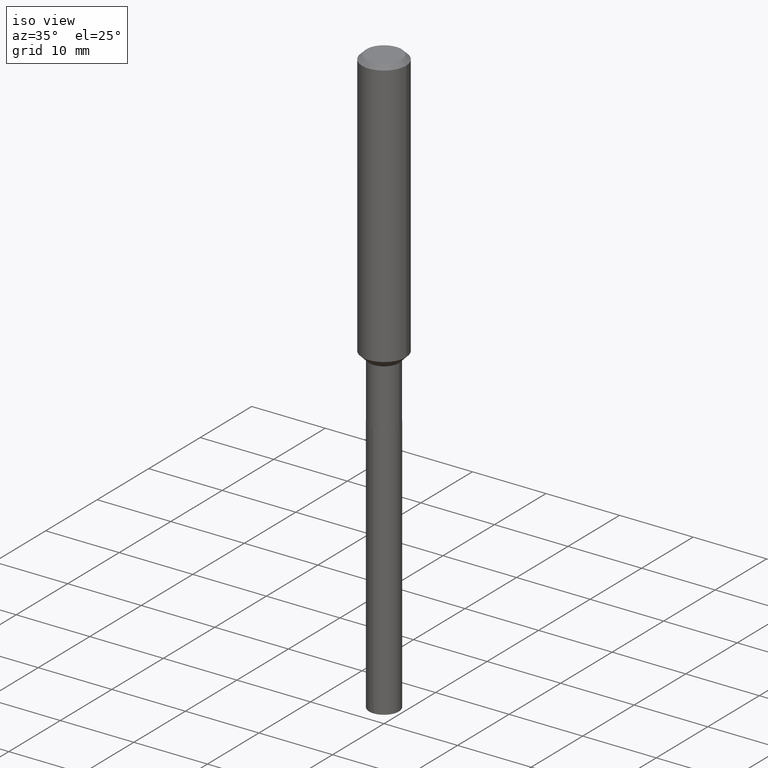
[diagram: clean part render]
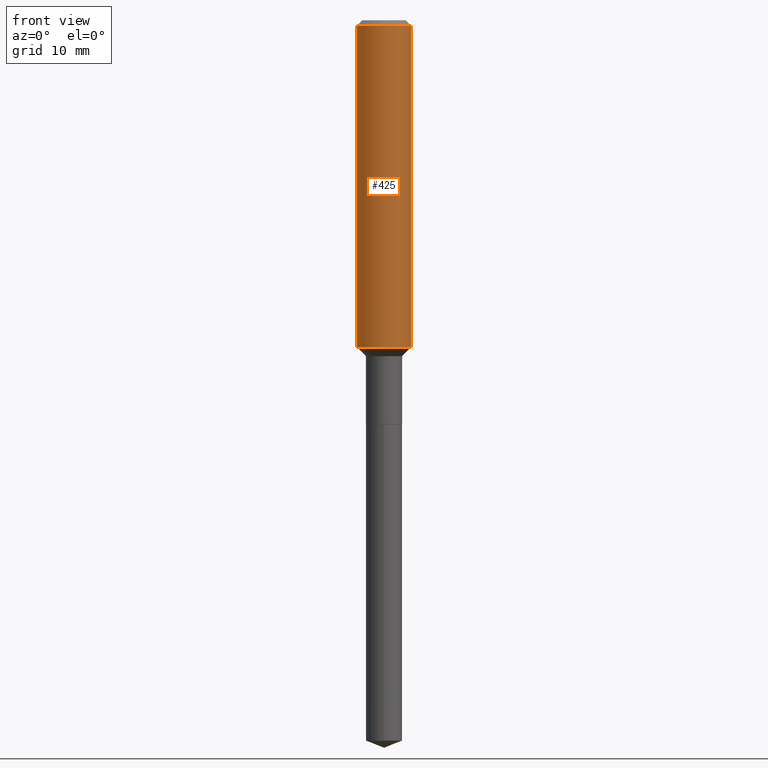
[diagram: tour spotlight — one face highlighted and labeled with its STEP entity id]
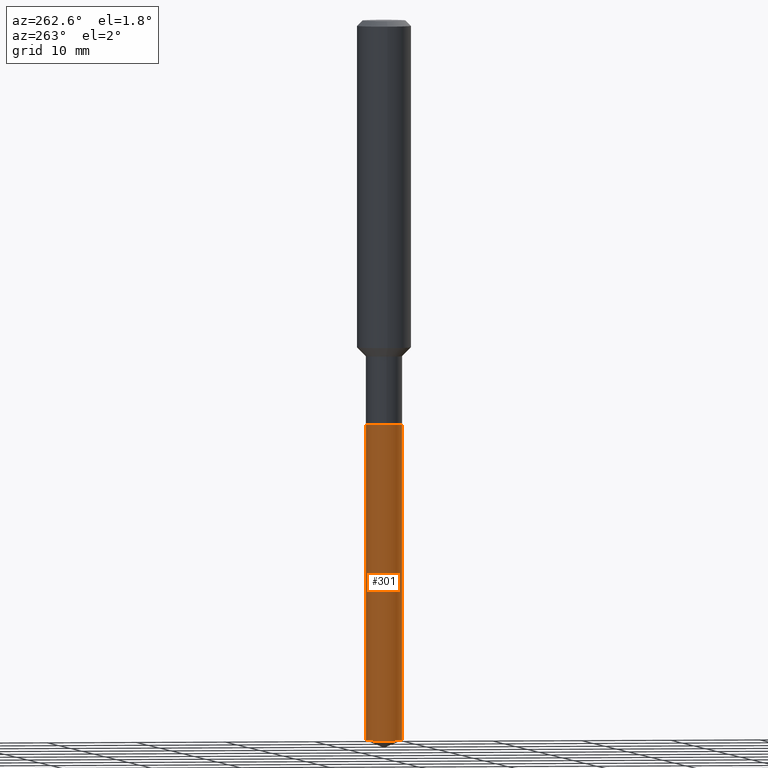
[diagram: tour spotlight — one face highlighted and labeled with its STEP entity id]
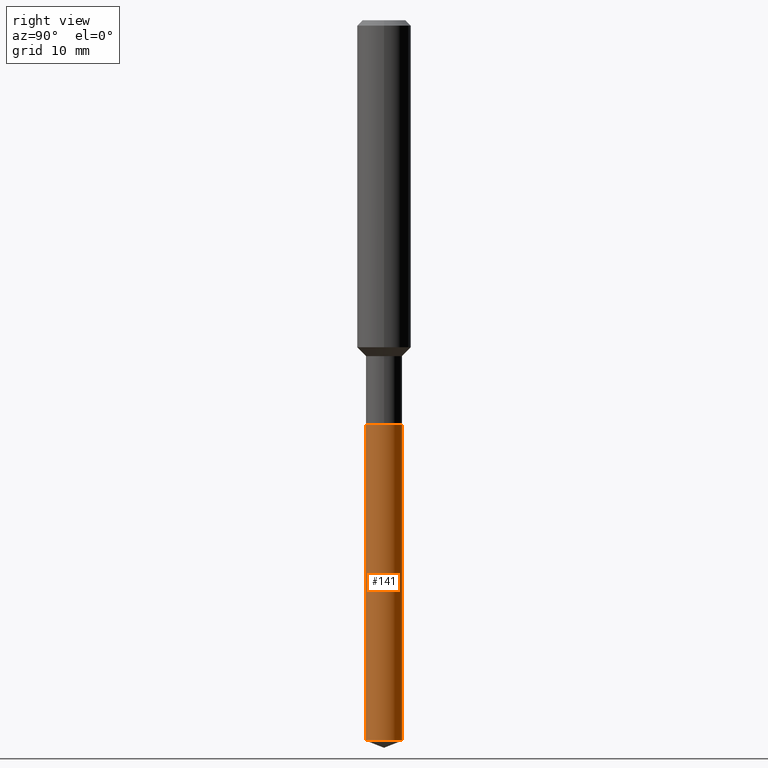
[diagram: tour spotlight — one face highlighted and labeled with its STEP entity id]
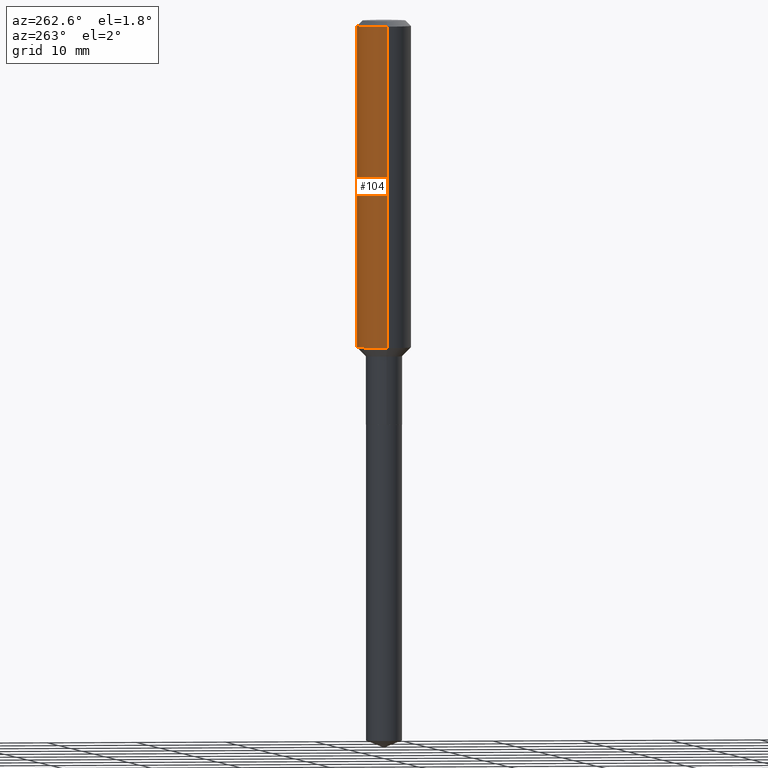
[diagram: tour spotlight — one face highlighted and labeled with its STEP entity id]
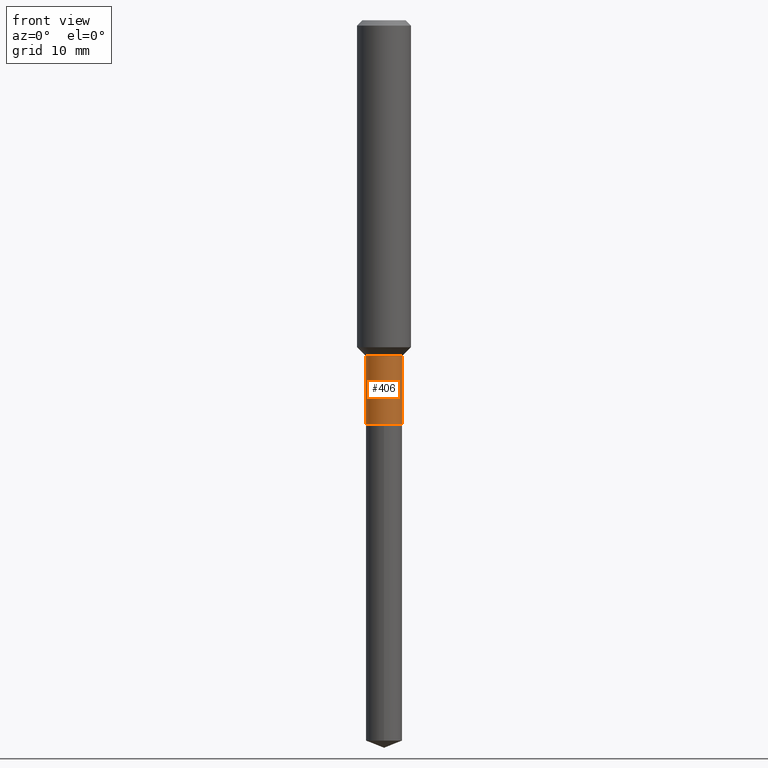
[diagram: tour spotlight — one face highlighted and labeled with its STEP entity id]
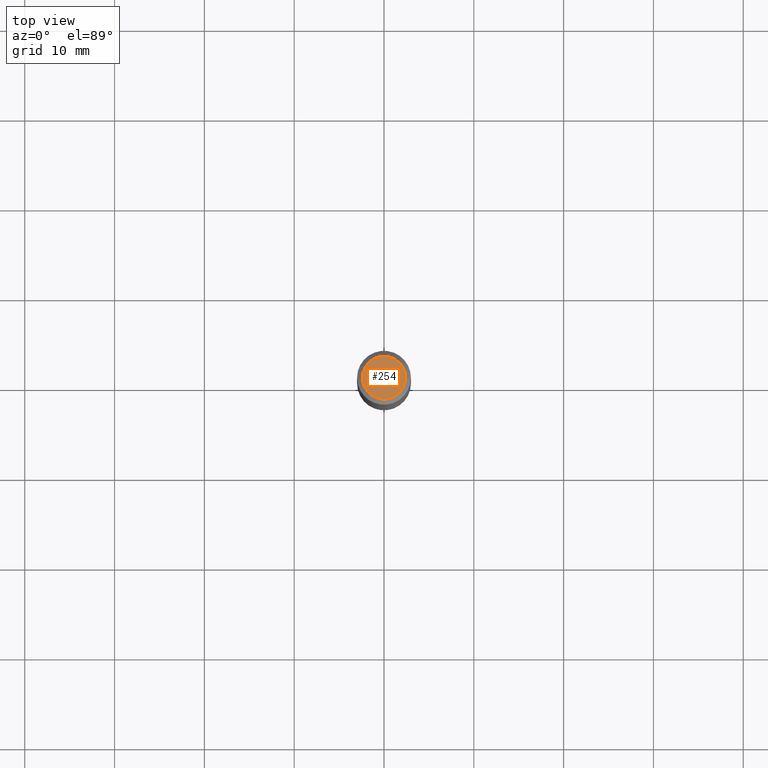
[diagram: tour spotlight — one face highlighted and labeled with its STEP entity id]
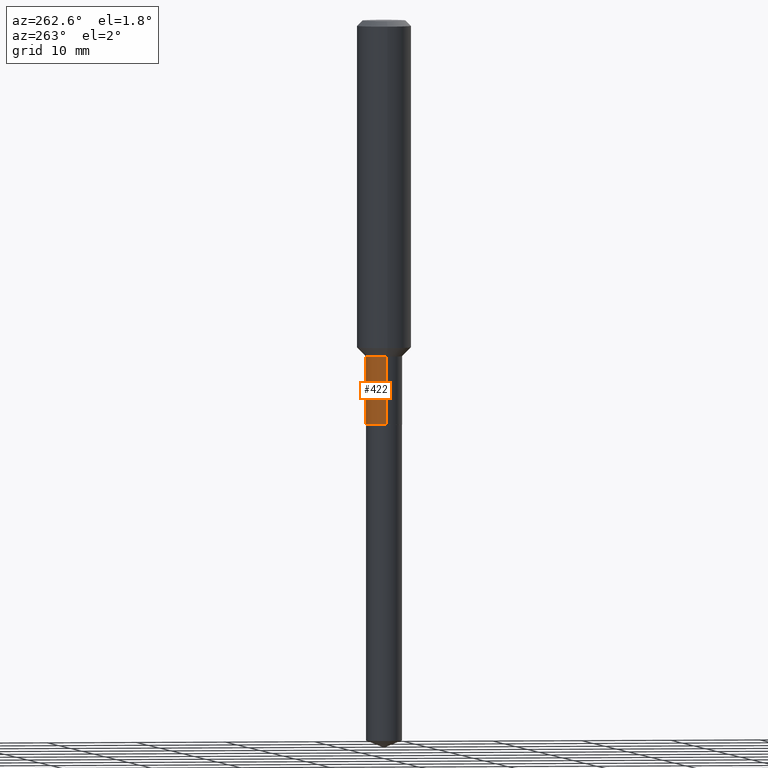
[diagram: tour spotlight — one face highlighted and labeled with its STEP entity id]
A machine part: a face-by-face anatomy tour. The part has 17 B-rep faces; the first image is the clean iso view, then the 7 largest visible faces are spotlighted one at a time (largest first), each with its STEP entity span.

Face 1 — front view, entity #425. In plain terms, the highlighted cylindrical surface (edge-blend (fillet) strip) has radius 2.9997 mm, axis along (-0, 0, 1).
Definition (entity closure, byte-faithful):
#8 = ORIENTED_EDGE ( 'NONE', *, *, #238, .F. ) ;
#27 = DIRECTION ( 'NONE',  ( -2.445468806185136597E-29, 3.491481338843145583E-15, 1.000000000000000000 ) ) ;
#28 = DIRECTION ( 'NONE',  ( -2.445468806185136877E-29, 3.491481338843145188E-15, 1.000000000000000000 ) ) ;
#29 = AXIS2_PLACEMENT_3D ( 'NONE', #194, #345, #156 ) ;
#30 = LINE ( 'NONE', #186, #168 ) ;
#39 = FACE_OUTER_BOUND ( 'NONE', #344, .T. ) ;
#66 = CIRCLE ( 'NONE', #29, 0.1181000000000001632 ) ;
#70 = CARTESIAN_POINT ( 'NONE',  ( 0.1181000000000000799, -8.246878922347486570E-16, 5.758764772215004644E-30 ) ) ;
#72 = CARTESIAN_POINT ( 'NONE',  ( 5.776197320209328408E-31, -8.246878922347560526E-17, -0.02362000000000014435 ) ) ;
#79 = CARTESIAN_POINT ( 'NONE',  ( 0.000000000000000000, 0.000000000000000000, 0.000000000000000000 ) ) ;
#80 = DIRECTION ( 'NONE',  ( 1.000000000000000000, -6.982962677686266711E-15, 0.000000000000000000 ) ) ;
#114 = EDGE_CURVE ( 'NONE', #119, #150, #30, .T. ) ;
#119 = VERTEX_POINT ( 'NONE', #244 ) ;
#150 = VERTEX_POINT ( 'NONE', #436 ) ;
#154 = ORIENTED_EDGE ( 'NONE', *, *, #234, .T. ) ;
#156 = DIRECTION ( 'NONE',  ( 1.000000000000000000, -6.982962677686270655E-15, 0.000000000000000000 ) ) ;
#157 = CARTESIAN_POINT ( 'NONE',  ( 0.1180999999999999966, -9.071566814582237199E-16, -0.02362000000000014435 ) ) ;
#158 = ORIENTED_EDGE ( 'NONE', *, *, #456, .T. ) ;
#166 = CYLINDRICAL_SURFACE ( 'NONE', #423, 0.1181000000000000799 ) ;
#168 = VECTOR ( 'NONE', #474, 39.37007874015748143 ) ;
#186 = CARTESIAN_POINT ( 'NONE',  ( -0.1181000000000000799, 8.391509709326788873E-16, -5.809262341591047988E-30 ) ) ;
#187 = VERTEX_POINT ( 'NONE', #157 ) ;
#194 = CARTESIAN_POINT ( 'NONE',  ( 3.505824080547012473E-29, -5.005387647365534614E-15, -1.433600000000000207 ) ) ;
#221 = ORIENTED_EDGE ( 'NONE', *, *, #114, .F. ) ;
#234 = EDGE_CURVE ( 'NONE', #310, #187, #368, .T. ) ;
#238 = EDGE_CURVE ( 'NONE', #150, #187, #443, .T. ) ;
#244 = CARTESIAN_POINT ( 'NONE',  ( -0.1181000000000001632, -4.166236676432854051E-15, -1.433600000000000207 ) ) ;
#310 = VERTEX_POINT ( 'NONE', #461 ) ;
#342 = DIRECTION ( 'NONE',  ( 1.000000000000000000, -6.982962677686266711E-15, 4.876176775795936353E-29 ) ) ;
#344 = EDGE_LOOP ( 'NONE', ( #221, #158, #154, #8 ) ) ;
#345 = DIRECTION ( 'NONE',  ( -2.445468806185136597E-29, 3.491481338843145583E-15, 1.000000000000000000 ) ) ;
#365 = VECTOR ( 'NONE', #28, 39.37007874015748143 ) ;
#368 = LINE ( 'NONE', #70, #365 ) ;
#369 = AXIS2_PLACEMENT_3D ( 'NONE', #72, #27, #80 ) ;
#423 = AXIS2_PLACEMENT_3D ( 'NONE', #79, #469, #342 ) ;
#425 = ADVANCED_FACE ( 'NONE', ( #39 ), #166, .T. ) ;
#436 = CARTESIAN_POINT ( 'NONE',  ( -0.1180999999999999966, -1.704777247361825655E-15, -0.02362000000000014435 ) ) ;
#443 = CIRCLE ( 'NONE', #369, 0.1180999999999999966 ) ;
#456 = EDGE_CURVE ( 'NONE', #119, #310, #66, .T. ) ;
#461 = CARTESIAN_POINT ( 'NONE',  ( 0.1181000000000001632, -5.830075539600283666E-15, -1.433600000000000207 ) ) ;
#469 = DIRECTION ( 'NONE',  ( -2.445468806185136597E-29, 3.491481338843145583E-15, 1.000000000000000000 ) ) ;
#474 = DIRECTION ( 'NONE',  ( -2.445468806185136877E-29, 3.491481338843145188E-15, 1.000000000000000000 ) ) ;

Face 2 — auxiliary view, entity #301. In plain terms, the highlighted cylindrical surface (edge-blend (fillet) strip) has radius 2.0193 mm, axis along (-0, 0, 1).
Definition (entity closure, byte-faithful):
#3 = VERTEX_POINT ( 'NONE', #438 ) ;
#4 = DIRECTION ( 'NONE',  ( -6.982962677686265922E-15, -1.000000000000000000, 3.436286784483350005E-15 ) ) ;
#12 = DIRECTION ( 'NONE',  ( -2.445298499858016910E-29, 3.491725227196815227E-15, 1.000000000000000000 ) ) ;
#25 = VECTOR ( 'NONE', #284, 39.37007874015748143 ) ;
#44 = ORIENTED_EDGE ( 'NONE', *, *, #405, .T. ) ;
#48 = CARTESIAN_POINT ( 'NONE',  ( -5.551455328760147649E-16, -0.07950000000000617684, -1.771700000000000053 ) ) ;
#73 = ORIENTED_EDGE ( 'NONE', *, *, #370, .F. ) ;
#85 = CARTESIAN_POINT ( 'NONE',  ( 5.648814749293228466E-16, 0.07949999999999381173, -1.771700000000000719 ) ) ;
#87 = VECTOR ( 'NONE', #347, 39.37007874015748143 ) ;
#140 = CIRCLE ( 'NONE', #339, 0.07950000000000000122 ) ;
#143 = EDGE_CURVE ( 'NONE', #375, #3, #140, .T. ) ;
#165 = DIRECTION ( 'NONE',  ( -2.445298499858016910E-29, 3.491725227196815227E-15, 1.000000000000000000 ) ) ;
#204 = DIRECTION ( 'NONE',  ( -6.982962677686265922E-15, -1.000000000000000000, 6.872573568966700010E-15 ) ) ;
#210 = CARTESIAN_POINT ( 'NONE',  ( 7.721781966506557939E-29, -1.102533319450998627E-14, -3.157684117188612305 ) ) ;
#212 = ORIENTED_EDGE ( 'NONE', *, *, #143, .T. ) ;
#216 = EDGE_CURVE ( 'NONE', #375, #248, #312, .T. ) ;
#239 = FACE_OUTER_BOUND ( 'NONE', #279, .T. ) ;
#241 = DIRECTION ( 'NONE',  ( -2.445298499858016910E-29, 3.491725227196815227E-15, 1.000000000000000000 ) ) ;
#248 = VERTEX_POINT ( 'NONE', #445 ) ;
#255 = CIRCLE ( 'NONE', #263, 0.07950000000000000122 ) ;
#263 = AXIS2_PLACEMENT_3D ( 'NONE', #421, #241, #4 ) ;
#276 = LINE ( 'NONE', #48, #87 ) ;
#279 = EDGE_LOOP ( 'NONE', ( #387, #212, #44, #73 ) ) ;
#284 = DIRECTION ( 'NONE',  ( -2.445298499858016629E-29, 3.491725227196814833E-15, 1.000000000000000000 ) ) ;
#289 = CARTESIAN_POINT ( 'NONE',  ( -5.551455328760147649E-16, -0.07950000000000617684, -1.771700000000000053 ) ) ;
#301 = ADVANCED_FACE ( 'NONE', ( #239 ), #453, .T. ) ;
#305 = DIRECTION ( 'NONE',  ( -6.982962677686265922E-15, -1.000000000000000000, 3.436286784483350005E-15 ) ) ;
#312 = LINE ( 'NONE', #85, #25 ) ;
#339 = AXIS2_PLACEMENT_3D ( 'NONE', #210, #165, #204 ) ;
#347 = DIRECTION ( 'NONE',  ( -2.445298499858016629E-29, 3.491725227196814833E-15, 1.000000000000000000 ) ) ;
#370 = EDGE_CURVE ( 'NONE', #248, #464, #255, .T. ) ;
#375 = VERTEX_POINT ( 'NONE', #390 ) ;
#379 = CARTESIAN_POINT ( 'NONE',  ( 4.332637083918206987E-29, -6.185857488028401870E-15, -1.771700000000000497 ) ) ;
#387 = ORIENTED_EDGE ( 'NONE', *, *, #216, .F. ) ;
#390 = CARTESIAN_POINT ( 'NONE',  ( 5.648814749293564718E-16, 0.07949999999998895450, -3.157684117188612749 ) ) ;
#405 = EDGE_CURVE ( 'NONE', #3, #464, #276, .T. ) ;
#421 = CARTESIAN_POINT ( 'NONE',  ( 4.332637083918206987E-29, -6.185857488028401870E-15, -1.771700000000000497 ) ) ;
#438 = CARTESIAN_POINT ( 'NONE',  ( -5.551455328759807452E-16, -0.07950000000001097855, -3.157684117188611861 ) ) ;
#445 = CARTESIAN_POINT ( 'NONE',  ( 5.648814749293570634E-16, 0.07949999999999381173, -1.771700000000000719 ) ) ;
#453 = CYLINDRICAL_SURFACE ( 'NONE', #462, 0.07950000000000000122 ) ;
#462 = AXIS2_PLACEMENT_3D ( 'NONE', #379, #12, #305 ) ;
#464 = VERTEX_POINT ( 'NONE', #289 ) ;

Face 3 — right view, entity #141. In plain terms, the highlighted cylindrical surface (edge-blend (fillet) strip) has radius 2.0193 mm, axis along (-0, 0, 1).
Definition (entity closure, byte-faithful):
#3 = VERTEX_POINT ( 'NONE', #438 ) ;
#7 = CARTESIAN_POINT ( 'NONE',  ( 4.332637083918206987E-29, -6.185857488028401870E-15, -1.771700000000000497 ) ) ;
#25 = VECTOR ( 'NONE', #284, 39.37007874015748143 ) ;
#48 = CARTESIAN_POINT ( 'NONE',  ( -5.551455328760147649E-16, -0.07950000000000617684, -1.771700000000000053 ) ) ;
#77 = ORIENTED_EDGE ( 'NONE', *, *, #355, .F. ) ;
#81 = ORIENTED_EDGE ( 'NONE', *, *, #112, .T. ) ;
#85 = CARTESIAN_POINT ( 'NONE',  ( 5.648814749293228466E-16, 0.07949999999999381173, -1.771700000000000719 ) ) ;
#87 = VECTOR ( 'NONE', #347, 39.37007874015748143 ) ;
#94 = DIRECTION ( 'NONE',  ( -2.445298499858016910E-29, 3.491725227196815227E-15, 1.000000000000000000 ) ) ;
#112 = EDGE_CURVE ( 'NONE', #3, #375, #147, .T. ) ;
#117 = CARTESIAN_POINT ( 'NONE',  ( 4.332637083918206987E-29, -6.185857488028401870E-15, -1.771700000000000497 ) ) ;
#121 = DIRECTION ( 'NONE',  ( -2.445298499858016910E-29, 3.491725227196815227E-15, 1.000000000000000000 ) ) ;
#141 = ADVANCED_FACE ( 'NONE', ( #428 ), #467, .T. ) ;
#147 = CIRCLE ( 'NONE', #190, 0.07950000000000000122 ) ;
#190 = AXIS2_PLACEMENT_3D ( 'NONE', #432, #94, #359 ) ;
#195 = ORIENTED_EDGE ( 'NONE', *, *, #405, .F. ) ;
#207 = DIRECTION ( 'NONE',  ( -6.982962677686265922E-15, -1.000000000000000000, 3.436286784483350005E-15 ) ) ;
#216 = EDGE_CURVE ( 'NONE', #375, #248, #312, .T. ) ;
#248 = VERTEX_POINT ( 'NONE', #445 ) ;
#276 = LINE ( 'NONE', #48, #87 ) ;
#283 = AXIS2_PLACEMENT_3D ( 'NONE', #7, #392, #207 ) ;
#284 = DIRECTION ( 'NONE',  ( -2.445298499858016629E-29, 3.491725227196814833E-15, 1.000000000000000000 ) ) ;
#289 = CARTESIAN_POINT ( 'NONE',  ( -5.551455328760147649E-16, -0.07950000000000617684, -1.771700000000000053 ) ) ;
#312 = LINE ( 'NONE', #85, #25 ) ;
#347 = DIRECTION ( 'NONE',  ( -2.445298499858016629E-29, 3.491725227196814833E-15, 1.000000000000000000 ) ) ;
#355 = EDGE_CURVE ( 'NONE', #464, #248, #412, .T. ) ;
#359 = DIRECTION ( 'NONE',  ( -6.982962677686265922E-15, -1.000000000000000000, 6.872573568966700010E-15 ) ) ;
#375 = VERTEX_POINT ( 'NONE', #390 ) ;
#377 = EDGE_LOOP ( 'NONE', ( #81, #413, #77, #195 ) ) ;
#384 = DIRECTION ( 'NONE',  ( -6.982962677686265922E-15, -1.000000000000000000, 3.436286784483350005E-15 ) ) ;
#390 = CARTESIAN_POINT ( 'NONE',  ( 5.648814749293564718E-16, 0.07949999999998895450, -3.157684117188612749 ) ) ;
#392 = DIRECTION ( 'NONE',  ( -2.445298499858016910E-29, 3.491725227196815227E-15, 1.000000000000000000 ) ) ;
#405 = EDGE_CURVE ( 'NONE', #3, #464, #276, .T. ) ;
#412 = CIRCLE ( 'NONE', #473, 0.07950000000000000122 ) ;
#413 = ORIENTED_EDGE ( 'NONE', *, *, #216, .T. ) ;
#428 = FACE_OUTER_BOUND ( 'NONE', #377, .T. ) ;
#432 = CARTESIAN_POINT ( 'NONE',  ( 7.721781966506557939E-29, -1.102533319450998627E-14, -3.157684117188612305 ) ) ;
#438 = CARTESIAN_POINT ( 'NONE',  ( -5.551455328759807452E-16, -0.07950000000001097855, -3.157684117188611861 ) ) ;
#445 = CARTESIAN_POINT ( 'NONE',  ( 5.648814749293570634E-16, 0.07949999999999381173, -1.771700000000000719 ) ) ;
#464 = VERTEX_POINT ( 'NONE', #289 ) ;
#467 = CYLINDRICAL_SURFACE ( 'NONE', #283, 0.07950000000000000122 ) ;
#473 = AXIS2_PLACEMENT_3D ( 'NONE', #117, #121, #384 ) ;

Face 4 — auxiliary view, entity #104. In plain terms, the highlighted cylindrical surface (edge-blend (fillet) strip) has radius 2.9997 mm, axis along (-0, 0, 1).
Definition (entity closure, byte-faithful):
#28 = DIRECTION ( 'NONE',  ( -2.445468806185136877E-29, 3.491481338843145188E-15, 1.000000000000000000 ) ) ;
#30 = LINE ( 'NONE', #186, #168 ) ;
#41 = DIRECTION ( 'NONE',  ( 1.000000000000000000, -6.982962677686266711E-15, 0.000000000000000000 ) ) ;
#56 = EDGE_CURVE ( 'NONE', #310, #119, #76, .T. ) ;
#64 = CARTESIAN_POINT ( 'NONE',  ( 0.000000000000000000, 0.000000000000000000, 0.000000000000000000 ) ) ;
#70 = CARTESIAN_POINT ( 'NONE',  ( 0.1181000000000000799, -8.246878922347486570E-16, 5.758764772215004644E-30 ) ) ;
#76 = CIRCLE ( 'NONE', #333, 0.1181000000000001632 ) ;
#83 = ORIENTED_EDGE ( 'NONE', *, *, #56, .T. ) ;
#96 = EDGE_LOOP ( 'NONE', ( #83, #450, #226, #346 ) ) ;
#104 = ADVANCED_FACE ( 'NONE', ( #397 ), #292, .T. ) ;
#114 = EDGE_CURVE ( 'NONE', #119, #150, #30, .T. ) ;
#119 = VERTEX_POINT ( 'NONE', #244 ) ;
#150 = VERTEX_POINT ( 'NONE', #436 ) ;
#157 = CARTESIAN_POINT ( 'NONE',  ( 0.1180999999999999966, -9.071566814582237199E-16, -0.02362000000000014435 ) ) ;
#161 = EDGE_CURVE ( 'NONE', #187, #150, #219, .T. ) ;
#168 = VECTOR ( 'NONE', #474, 39.37007874015748143 ) ;
#177 = CARTESIAN_POINT ( 'NONE',  ( 3.505824080547012473E-29, -5.005387647365534614E-15, -1.433600000000000207 ) ) ;
#186 = CARTESIAN_POINT ( 'NONE',  ( -0.1181000000000000799, 8.391509709326788873E-16, -5.809262341591047988E-30 ) ) ;
#187 = VERTEX_POINT ( 'NONE', #157 ) ;
#219 = CIRCLE ( 'NONE', #430, 0.1180999999999999966 ) ;
#226 = ORIENTED_EDGE ( 'NONE', *, *, #161, .F. ) ;
#234 = EDGE_CURVE ( 'NONE', #310, #187, #368, .T. ) ;
#235 = CARTESIAN_POINT ( 'NONE',  ( 5.776197320209328408E-31, -8.246878922347560526E-17, -0.02362000000000014435 ) ) ;
#244 = CARTESIAN_POINT ( 'NONE',  ( -0.1181000000000001632, -4.166236676432854051E-15, -1.433600000000000207 ) ) ;
#286 = DIRECTION ( 'NONE',  ( 1.000000000000000000, -6.982962677686266711E-15, 4.876176775795936353E-29 ) ) ;
#292 = CYLINDRICAL_SURFACE ( 'NONE', #362, 0.1181000000000000799 ) ;
#310 = VERTEX_POINT ( 'NONE', #461 ) ;
#333 = AXIS2_PLACEMENT_3D ( 'NONE', #177, #403, #472 ) ;
#346 = ORIENTED_EDGE ( 'NONE', *, *, #234, .F. ) ;
#362 = AXIS2_PLACEMENT_3D ( 'NONE', #64, #475, #286 ) ;
#365 = VECTOR ( 'NONE', #28, 39.37007874015748143 ) ;
#368 = LINE ( 'NONE', #70, #365 ) ;
#382 = DIRECTION ( 'NONE',  ( -2.445468806185136597E-29, 3.491481338843145583E-15, 1.000000000000000000 ) ) ;
#397 = FACE_OUTER_BOUND ( 'NONE', #96, .T. ) ;
#403 = DIRECTION ( 'NONE',  ( -2.445468806185136597E-29, 3.491481338843145583E-15, 1.000000000000000000 ) ) ;
#430 = AXIS2_PLACEMENT_3D ( 'NONE', #235, #382, #41 ) ;
#436 = CARTESIAN_POINT ( 'NONE',  ( -0.1180999999999999966, -1.704777247361825655E-15, -0.02362000000000014435 ) ) ;
#450 = ORIENTED_EDGE ( 'NONE', *, *, #114, .T. ) ;
#461 = CARTESIAN_POINT ( 'NONE',  ( 0.1181000000000001632, -5.830075539600283666E-15, -1.433600000000000207 ) ) ;
#472 = DIRECTION ( 'NONE',  ( 1.000000000000000000, -6.982962677686270655E-15, 0.000000000000000000 ) ) ;
#474 = DIRECTION ( 'NONE',  ( -2.445468806185136877E-29, 3.491481338843145188E-15, 1.000000000000000000 ) ) ;
#475 = DIRECTION ( 'NONE',  ( -2.445468806185136597E-29, 3.491481338843145583E-15, 1.000000000000000000 ) ) ;

Face 5 — front view, entity #406. In plain terms, the highlighted cylindrical surface (edge-blend (fillet) strip) has radius 2.0193 mm, axis along (-0, 0, 1).
Definition (entity closure, byte-faithful):
#10 = DIRECTION ( 'NONE',  ( 1.000000000000000000, -6.982962677686267499E-15, 4.876176775795935793E-29 ) ) ;
#13 = FACE_OUTER_BOUND ( 'NONE', #380, .T. ) ;
#18 = EDGE_CURVE ( 'NONE', #378, #227, #50, .T. ) ;
#20 = VERTEX_POINT ( 'NONE', #58 ) ;
#43 = CYLINDRICAL_SURFACE ( 'NONE', #366, 0.07949999999999998734 ) ;
#50 = LINE ( 'NONE', #137, #105 ) ;
#58 = CARTESIAN_POINT ( 'NONE',  ( -0.07950000000000000122, -5.097253812272650534E-15, -1.771200000000000552 ) ) ;
#99 = DIRECTION ( 'NONE',  ( -2.445468806185136597E-29, 3.491481338843145583E-15, 1.000000000000000000 ) ) ;
#100 = CIRCLE ( 'NONE', #353, 0.07950000000000000122 ) ;
#102 = EDGE_CURVE ( 'NONE', #414, #227, #455, .T. ) ;
#105 = VECTOR ( 'NONE', #364, 39.37007874015748143 ) ;
#122 = EDGE_CURVE ( 'NONE', #20, #378, #100, .T. ) ;
#132 = CARTESIAN_POINT ( 'NONE',  ( -0.07949999999999998734, 5.648814749292795578E-16, -3.910553396752649427E-30 ) ) ;
#137 = CARTESIAN_POINT ( 'NONE',  ( 0.07949999999999998734, -5.551455328760581522E-16, 3.876560536757768171E-30 ) ) ;
#153 = CARTESIAN_POINT ( 'NONE',  ( 0.000000000000000000, 0.000000000000000000, 0.000000000000000000 ) ) ;
#160 = DIRECTION ( 'NONE',  ( -2.445468806185136597E-29, 3.491481338843145583E-15, 1.000000000000000000 ) ) ;
#164 = CARTESIAN_POINT ( 'NONE',  ( -0.07949999999999995959, -5.097253812272650534E-15, -1.472200000000000175 ) ) ;
#227 = VERTEX_POINT ( 'NONE', #419 ) ;
#237 = ORIENTED_EDGE ( 'NONE', *, *, #480, .F. ) ;
#247 = DIRECTION ( 'NONE',  ( -2.445468806185136877E-29, 3.491481338843145188E-15, 1.000000000000000000 ) ) ;
#251 = AXIS2_PLACEMENT_3D ( 'NONE', #441, #99, #261 ) ;
#258 = ORIENTED_EDGE ( 'NONE', *, *, #102, .F. ) ;
#261 = DIRECTION ( 'NONE',  ( 1.000000000000000000, -6.982962677686269866E-15, 0.000000000000000000 ) ) ;
#295 = LINE ( 'NONE', #132, #313 ) ;
#304 = ORIENTED_EDGE ( 'NONE', *, *, #122, .T. ) ;
#313 = VECTOR ( 'NONE', #247, 39.37007874015748143 ) ;
#353 = AXIS2_PLACEMENT_3D ( 'NONE', #389, #394, #385 ) ;
#364 = DIRECTION ( 'NONE',  ( -2.445468806185136877E-29, 3.491481338843145188E-15, 1.000000000000000000 ) ) ;
#366 = AXIS2_PLACEMENT_3D ( 'NONE', #153, #160, #10 ) ;
#378 = VERTEX_POINT ( 'NONE', #388 ) ;
#380 = EDGE_LOOP ( 'NONE', ( #237, #304, #416, #258 ) ) ;
#385 = DIRECTION ( 'NONE',  ( 1.000000000000000000, -6.982962677686265922E-15, 0.000000000000000000 ) ) ;
#388 = CARTESIAN_POINT ( 'NONE',  ( 0.07950000000000000122, -6.739257280235039801E-15, -1.771200000000000552 ) ) ;
#389 = CARTESIAN_POINT ( 'NONE',  ( 4.331414349515115307E-29, -6.184111747358981944E-15, -1.771200000000000552 ) ) ;
#394 = DIRECTION ( 'NONE',  ( -2.445468806185136597E-29, 3.491481338843145583E-15, 1.000000000000000000 ) ) ;
#406 = ADVANCED_FACE ( 'NONE', ( #13 ), #43, .T. ) ;
#414 = VERTEX_POINT ( 'NONE', #164 ) ;
#416 = ORIENTED_EDGE ( 'NONE', *, *, #18, .T. ) ;
#419 = CARTESIAN_POINT ( 'NONE',  ( 0.07949999999999995959, -5.695304359920937279E-15, -1.472200000000000175 ) ) ;
#441 = CARTESIAN_POINT ( 'NONE',  ( 3.600219176465758474E-29, -5.140158827044879423E-15, -1.472200000000000175 ) ) ;
#455 = CIRCLE ( 'NONE', #251, 0.07949999999999995959 ) ;
#480 = EDGE_CURVE ( 'NONE', #20, #414, #295, .T. ) ;

Face 6 — top view, entity #254. In plain terms, the highlighted planar face has unit normal (0, -0, -1).
Definition (entity closure, byte-faithful):
#106 = AXIS2_PLACEMENT_3D ( 'NONE', #224, #374, #144 ) ;
#108 = AXIS2_PLACEMENT_3D ( 'NONE', #124, #466, #308 ) ;
#109 = ORIENTED_EDGE ( 'NONE', *, *, #256, .T. ) ;
#124 = CARTESIAN_POINT ( 'NONE',  ( 6.603013411620882309E-46, -9.427353171913646324E-32, -2.700101262760083747E-17 ) ) ;
#138 = CIRCLE ( 'NONE', #108, 0.09447999999999998066 ) ;
#144 = DIRECTION ( 'NONE',  ( -1.000000000000000000, 6.982962677686265922E-15, -4.876176775795935793E-29 ) ) ;
#192 = FACE_OUTER_BOUND ( 'NONE', #446, .T. ) ;
#224 = CARTESIAN_POINT ( 'NONE',  ( 3.301506705810441154E-46, -4.713676585956823162E-32, -1.350050631380041873E-17 ) ) ;
#254 = ADVANCED_FACE ( 'NONE', ( #192 ), #334, .F. ) ;
#256 = EDGE_CURVE ( 'NONE', #270, #354, #278, .T. ) ;
#270 = VERTEX_POINT ( 'NONE', #451 ) ;
#278 = CIRCLE ( 'NONE', #448, 0.09447999999999998066 ) ;
#306 = ORIENTED_EDGE ( 'NONE', *, *, #335, .T. ) ;
#308 = DIRECTION ( 'NONE',  ( 1.000000000000000000, -6.982962677686267499E-15, 4.875432709231658792E-29 ) ) ;
#334 = PLANE ( 'NONE',  #106 ) ;
#335 = EDGE_CURVE ( 'NONE', #354, #270, #138, .T. ) ;
#340 = DIRECTION ( 'NONE',  ( -2.445468806185136597E-29, 3.491481338843145583E-15, 1.000000000000000000 ) ) ;
#354 = VERTEX_POINT ( 'NONE', #418 ) ;
#374 = DIRECTION ( 'NONE',  ( 2.438088387897960049E-29, -3.491481338843145188E-15, -1.000000000000000000 ) ) ;
#408 = DIRECTION ( 'NONE',  ( 1.000000000000000000, -6.982962677686267499E-15, 4.875432709231658792E-29 ) ) ;
#418 = CARTESIAN_POINT ( 'NONE',  ( -0.09447999999999998066, 7.009847083995354710E-16, -2.700101262760559836E-17 ) ) ;
#446 = EDGE_LOOP ( 'NONE', ( #306, #109 ) ) ;
#448 = AXIS2_PLACEMENT_3D ( 'NONE', #485, #340, #408 ) ;
#451 = CARTESIAN_POINT ( 'NONE',  ( 0.09447999999999998066, -7.704367267948738690E-16, -2.700101262759583929E-17 ) ) ;
#466 = DIRECTION ( 'NONE',  ( -2.445468806185136597E-29, 3.491481338843145583E-15, 1.000000000000000000 ) ) ;
#485 = CARTESIAN_POINT ( 'NONE',  ( 6.603013411620882309E-46, -9.427353171913646324E-32, -2.700101262760083747E-17 ) ) ;

Face 7 — auxiliary view, entity #422. In plain terms, the highlighted cylindrical surface (edge-blend (fillet) strip) has radius 2.0193 mm, axis along (-0, 0, 1).
Definition (entity closure, byte-faithful):
#11 = ORIENTED_EDGE ( 'NONE', *, *, #386, .F. ) ;
#18 = EDGE_CURVE ( 'NONE', #378, #227, #50, .T. ) ;
#20 = VERTEX_POINT ( 'NONE', #58 ) ;
#38 = CIRCLE ( 'NONE', #213, 0.07949999999999995959 ) ;
#50 = LINE ( 'NONE', #137, #105 ) ;
#52 = CIRCLE ( 'NONE', #468, 0.07950000000000000122 ) ;
#58 = CARTESIAN_POINT ( 'NONE',  ( -0.07950000000000000122, -5.097253812272650534E-15, -1.771200000000000552 ) ) ;
#69 = EDGE_CURVE ( 'NONE', #378, #20, #52, .T. ) ;
#101 = AXIS2_PLACEMENT_3D ( 'NONE', #381, #316, #243 ) ;
#105 = VECTOR ( 'NONE', #364, 39.37007874015748143 ) ;
#132 = CARTESIAN_POINT ( 'NONE',  ( -0.07949999999999998734, 5.648814749292795578E-16, -3.910553396752649427E-30 ) ) ;
#133 = DIRECTION ( 'NONE',  ( 1.000000000000000000, -6.982962677686265922E-15, 0.000000000000000000 ) ) ;
#137 = CARTESIAN_POINT ( 'NONE',  ( 0.07949999999999998734, -5.551455328760581522E-16, 3.876560536757768171E-30 ) ) ;
#149 = EDGE_LOOP ( 'NONE', ( #454, #202, #11, #424 ) ) ;
#164 = CARTESIAN_POINT ( 'NONE',  ( -0.07949999999999995959, -5.097253812272650534E-15, -1.472200000000000175 ) ) ;
#202 = ORIENTED_EDGE ( 'NONE', *, *, #480, .T. ) ;
#203 = DIRECTION ( 'NONE',  ( -2.445468806185136597E-29, 3.491481338843145583E-15, 1.000000000000000000 ) ) ;
#213 = AXIS2_PLACEMENT_3D ( 'NONE', #230, #203, #350 ) ;
#227 = VERTEX_POINT ( 'NONE', #419 ) ;
#230 = CARTESIAN_POINT ( 'NONE',  ( 3.600219176465758474E-29, -5.140158827044879423E-15, -1.472200000000000175 ) ) ;
#243 = DIRECTION ( 'NONE',  ( 1.000000000000000000, -6.982962677686267499E-15, 4.876176775795935793E-29 ) ) ;
#247 = DIRECTION ( 'NONE',  ( -2.445468806185136877E-29, 3.491481338843145188E-15, 1.000000000000000000 ) ) ;
#295 = LINE ( 'NONE', #132, #313 ) ;
#313 = VECTOR ( 'NONE', #247, 39.37007874015748143 ) ;
#316 = DIRECTION ( 'NONE',  ( -2.445468806185136597E-29, 3.491481338843145583E-15, 1.000000000000000000 ) ) ;
#319 = FACE_OUTER_BOUND ( 'NONE', #149, .T. ) ;
#325 = CARTESIAN_POINT ( 'NONE',  ( 4.331414349515115307E-29, -6.184111747358981944E-15, -1.771200000000000552 ) ) ;
#330 = DIRECTION ( 'NONE',  ( -2.445468806185136597E-29, 3.491481338843145583E-15, 1.000000000000000000 ) ) ;
#350 = DIRECTION ( 'NONE',  ( 1.000000000000000000, -6.982962677686269866E-15, 0.000000000000000000 ) ) ;
#364 = DIRECTION ( 'NONE',  ( -2.445468806185136877E-29, 3.491481338843145188E-15, 1.000000000000000000 ) ) ;
#378 = VERTEX_POINT ( 'NONE', #388 ) ;
#381 = CARTESIAN_POINT ( 'NONE',  ( 0.000000000000000000, 0.000000000000000000, 0.000000000000000000 ) ) ;
#386 = EDGE_CURVE ( 'NONE', #227, #414, #38, .T. ) ;
#388 = CARTESIAN_POINT ( 'NONE',  ( 0.07950000000000000122, -6.739257280235039801E-15, -1.771200000000000552 ) ) ;
#414 = VERTEX_POINT ( 'NONE', #164 ) ;
#419 = CARTESIAN_POINT ( 'NONE',  ( 0.07949999999999995959, -5.695304359920937279E-15, -1.472200000000000175 ) ) ;
#422 = ADVANCED_FACE ( 'NONE', ( #319 ), #457, .T. ) ;
#424 = ORIENTED_EDGE ( 'NONE', *, *, #18, .F. ) ;
#454 = ORIENTED_EDGE ( 'NONE', *, *, #69, .T. ) ;
#457 = CYLINDRICAL_SURFACE ( 'NONE', #101, 0.07949999999999998734 ) ;
#468 = AXIS2_PLACEMENT_3D ( 'NONE', #325, #330, #133 ) ;
#480 = EDGE_CURVE ( 'NONE', #20, #414, #295, .T. ) ;